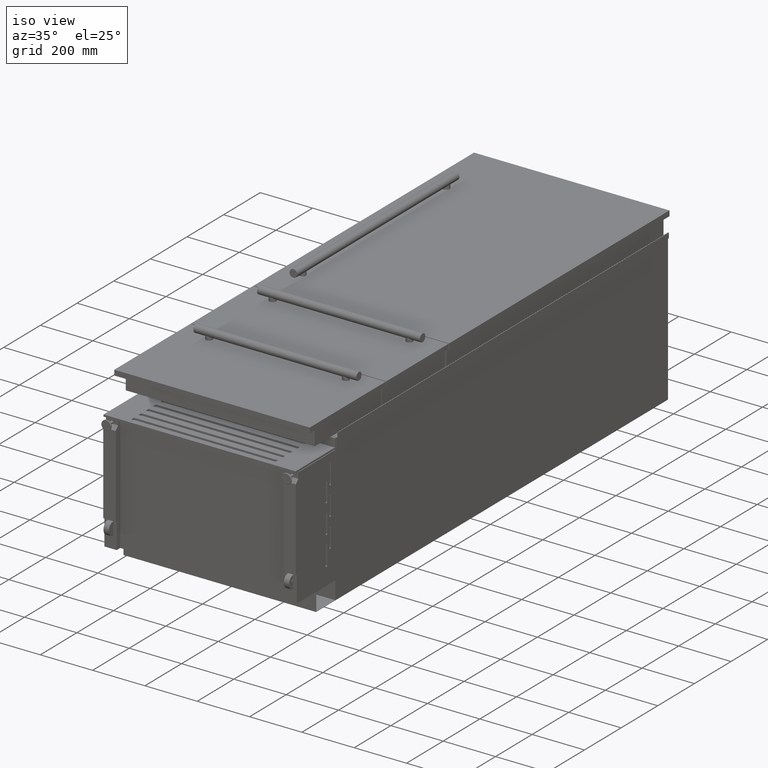
[diagram: clean part render]
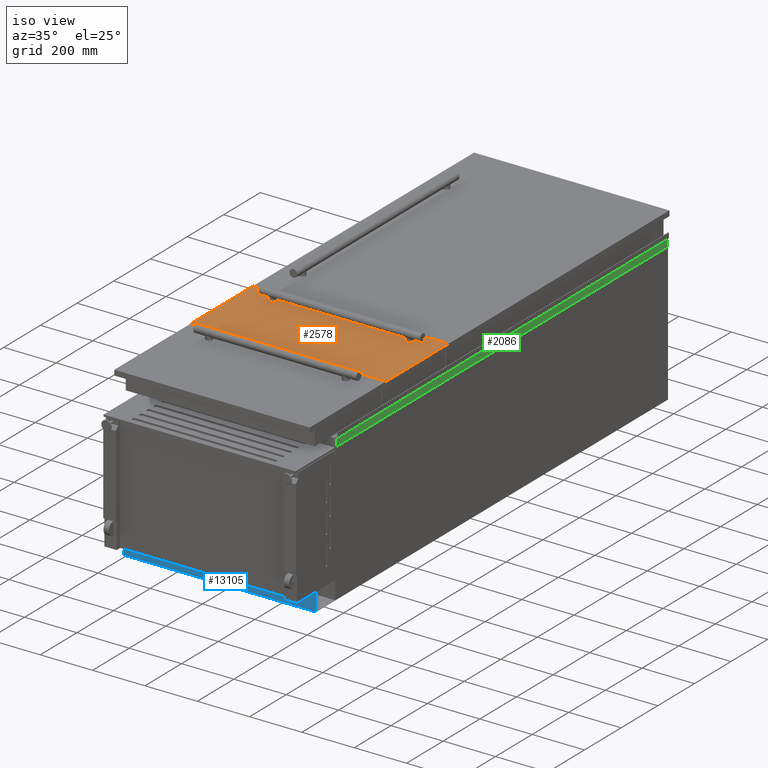
[diagram: same view with three faces highlighted in distinct colors, each labeled with its STEP entity id]
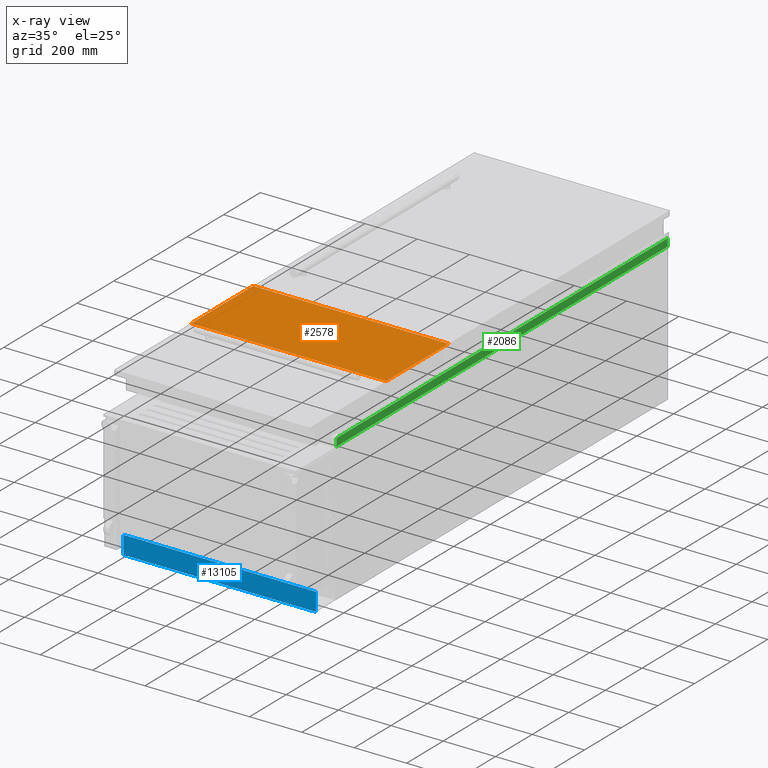
[diagram: x-ray of the same camera — body ghosted, the three highlighted faces saturated]
A machine part, iso view with three faces highlighted in distinct colors.
The next image is the same camera in x-ray (body ghosted, the three faces saturated) — at least one of them is partly hidden behind the body in this view.
Their STEP definitions:

[orange] entity #2578 — the highlighted planar face has unit normal (0, 0, -1).
#56 = DIRECTION ( 'NONE',  ( 0.0000000000000000000, 0.0000000000000000000, -1.000000000000000000 ) ) ;
#154 = ORIENTED_EDGE ( 'NONE', *, *, #8653, .T. ) ;
#173 = EDGE_CURVE ( 'NONE', #1429, #10213, #13714, .T. ) ;
#688 = VERTEX_POINT ( 'NONE', #13944 ) ;
#698 = LINE ( 'NONE', #997, #9811 ) ;
#807 = FACE_OUTER_BOUND ( 'NONE', #13815, .T. ) ;
#997 = CARTESIAN_POINT ( 'NONE',  ( -373.5000000000000600, -530.1499999999995200, 375.0000000000000600 ) ) ;
#1429 = VERTEX_POINT ( 'NONE', #7833 ) ;
#2578 = ADVANCED_FACE ( 'NONE', ( #807 ), #13205, .F. ) ;
#3335 = CARTESIAN_POINT ( 'NONE',  ( -373.5000000000001100, -190.1499999999994900, 375.0000000000000600 ) ) ;
#3473 = DIRECTION ( 'NONE',  ( -1.000000000000000000, 0.0000000000000000000, -0.0000000000000000000 ) ) ;
#4621 = ORIENTED_EDGE ( 'NONE', *, *, #173, .T. ) ;
#5684 = DIRECTION ( 'NONE',  ( -1.000000000000000000, -0.0000000000000000000, -0.0000000000000000000 ) ) ;
#5839 = VECTOR ( 'NONE', #6479, 1000.000000000000000 ) ;
#6479 = DIRECTION ( 'NONE',  ( 1.632680918566406300E-016, -1.000000000000000000, -0.0000000000000000000 ) ) ;
#7161 = CARTESIAN_POINT ( 'NONE',  ( -373.5000000000001100, -190.1499999999994900, 375.0000000000000600 ) ) ;
#7216 = CARTESIAN_POINT ( 'NONE',  ( 373.5000000000000000, -530.1499999999995200, 375.0000000000000600 ) ) ;
#7809 = VECTOR ( 'NONE', #5684, 1000.000000000000000 ) ;
#7833 = CARTESIAN_POINT ( 'NONE',  ( 373.5000000000000000, -530.1499999999995200, 375.0000000000000600 ) ) ;
#7880 = VECTOR ( 'NONE', #9433, 1000.000000000000000 ) ;
#8653 = EDGE_CURVE ( 'NONE', #12009, #688, #10518, .T. ) ;
#9045 = AXIS2_PLACEMENT_3D ( 'NONE', #9932, #56, #3473 ) ;
#9336 = EDGE_CURVE ( 'NONE', #688, #1429, #698, .T. ) ;
#9433 = DIRECTION ( 'NONE',  ( 1.632680918566406300E-016, 1.000000000000000000, 0.0000000000000000000 ) ) ;
#9600 = CARTESIAN_POINT ( 'NONE',  ( -373.5000000000000600, -530.1499999999995200, 375.0000000000000600 ) ) ;
#9811 = VECTOR ( 'NONE', #10917, 1000.000000000000000 ) ;
#9932 = CARTESIAN_POINT ( 'NONE',  ( 0.0000000000000000000, 0.0000000000000000000, 375.0000000000000600 ) ) ;
#10213 = VERTEX_POINT ( 'NONE', #10410 ) ;
#10410 = CARTESIAN_POINT ( 'NONE',  ( 373.5000000000000600, -190.1499999999994900, 375.0000000000000600 ) ) ;
#10518 = LINE ( 'NONE', #9600, #5839 ) ;
#10917 = DIRECTION ( 'NONE',  ( 1.000000000000000000, 0.0000000000000000000, 0.0000000000000000000 ) ) ;
#11139 = EDGE_CURVE ( 'NONE', #10213, #12009, #13485, .T. ) ;
#11435 = ORIENTED_EDGE ( 'NONE', *, *, #9336, .T. ) ;
#11884 = ORIENTED_EDGE ( 'NONE', *, *, #11139, .T. ) ;
#12009 = VERTEX_POINT ( 'NONE', #7161 ) ;
#13205 = PLANE ( 'NONE',  #9045 ) ;
#13485 = LINE ( 'NONE', #3335, #7809 ) ;
#13714 = LINE ( 'NONE', #7216, #7880 ) ;
#13815 = EDGE_LOOP ( 'NONE', ( #4621, #11884, #154, #11435 ) ) ;
#13944 = CARTESIAN_POINT ( 'NONE',  ( -373.5000000000000600, -530.1499999999995200, 375.0000000000000600 ) ) ;

[blue] entity #13105 — the highlighted planar face has unit normal (0, 1, 0).
#419 = DIRECTION ( 'NONE',  ( -0.0000000000000000000, -0.0000000000000000000, -1.000000000000000000 ) ) ;
#696 = CARTESIAN_POINT ( 'NONE',  ( 368.0000000000000000, -905.6000000000001400, -280.0000000000001100 ) ) ;
#726 = VERTEX_POINT ( 'NONE', #6329 ) ;
#2138 = ORIENTED_EDGE ( 'NONE', *, *, #11890, .F. ) ;
#2698 = CARTESIAN_POINT ( 'NONE',  ( 368.0000000000000000, -905.6000000000001400, -280.0000000000001100 ) ) ;
#3128 = DIRECTION ( 'NONE',  ( -0.0000000000000000000, -0.0000000000000000000, -1.000000000000000000 ) ) ;
#3644 = CARTESIAN_POINT ( 'NONE',  ( -368.0000000000000000, -905.6000000000001400, -280.0000000000001100 ) ) ;
#3654 = VERTEX_POINT ( 'NONE', #8105 ) ;
#3919 = VECTOR ( 'NONE', #13608, 1000.000000000000000 ) ;
#4030 = CARTESIAN_POINT ( 'NONE',  ( -368.0000000000000000, -905.6000000000001400, -280.0000000000001100 ) ) ;
#4073 = LINE ( 'NONE', #4030, #13395 ) ;
#4378 = VECTOR ( 'NONE', #11778, 1000.000000000000000 ) ;
#5448 = FACE_OUTER_BOUND ( 'NONE', #8468, .T. ) ;
#5705 = VERTEX_POINT ( 'NONE', #696 ) ;
#6329 = CARTESIAN_POINT ( 'NONE',  ( 368.0000000000000000, -905.6000000000001400, -210.3999999999998400 ) ) ;
#6376 = LINE ( 'NONE', #6981, #12576 ) ;
#6856 = PLANE ( 'NONE',  #9789 ) ;
#6981 = CARTESIAN_POINT ( 'NONE',  ( 368.0000000000000000, -905.6000000000001400, -280.0000000000001100 ) ) ;
#7340 = CARTESIAN_POINT ( 'NONE',  ( 368.0000000000000000, -905.6000000000001400, -210.3999999999998400 ) ) ;
#7522 = VERTEX_POINT ( 'NONE', #3644 ) ;
#7612 = ORIENTED_EDGE ( 'NONE', *, *, #7939, .F. ) ;
#7939 = EDGE_CURVE ( 'NONE', #726, #5705, #6376, .T. ) ;
#8105 = CARTESIAN_POINT ( 'NONE',  ( -368.0000000000000000, -905.6000000000001400, -210.3999999999998400 ) ) ;
#8331 = LINE ( 'NONE', #7340, #4378 ) ;
#8468 = EDGE_LOOP ( 'NONE', ( #11011, #10325, #2138, #7612 ) ) ;
#9789 = AXIS2_PLACEMENT_3D ( 'NONE', #10182, #10041, #13487 ) ;
#9803 = EDGE_CURVE ( 'NONE', #3654, #7522, #4073, .T. ) ;
#10041 = DIRECTION ( 'NONE',  ( 0.0000000000000000000, 1.000000000000000000, 0.0000000000000000000 ) ) ;
#10182 = CARTESIAN_POINT ( 'NONE',  ( 368.0000000000000000, -905.6000000000001400, -280.0000000000001100 ) ) ;
#10325 = ORIENTED_EDGE ( 'NONE', *, *, #9803, .T. ) ;
#11011 = ORIENTED_EDGE ( 'NONE', *, *, #13966, .T. ) ;
#11778 = DIRECTION ( 'NONE',  ( -1.000000000000000000, -0.0000000000000000000, -0.0000000000000000000 ) ) ;
#11890 = EDGE_CURVE ( 'NONE', #5705, #7522, #12378, .T. ) ;
#12378 = LINE ( 'NONE', #2698, #3919 ) ;
#12576 = VECTOR ( 'NONE', #419, 1000.000000000000000 ) ;
#13105 = ADVANCED_FACE ( 'NONE', ( #5448 ), #6856, .F. ) ;
#13395 = VECTOR ( 'NONE', #3128, 1000.000000000000000 ) ;
#13487 = DIRECTION ( 'NONE',  ( 0.0000000000000000000, -0.0000000000000000000, 1.000000000000000000 ) ) ;
#13608 = DIRECTION ( 'NONE',  ( -1.000000000000000000, -0.0000000000000000000, -0.0000000000000000000 ) ) ;
#13966 = EDGE_CURVE ( 'NONE', #726, #3654, #8331, .T. ) ;

[green] entity #2086 — the highlighted planar face has unit normal (-1, 0, 0).
#1050 = EDGE_CURVE ( 'NONE', #9129, #4107, #4669, .T. ) ;
#1090 = VECTOR ( 'NONE', #7188, 1000.000000000000000 ) ;
#1249 = CARTESIAN_POINT ( 'NONE',  ( 369.4999998500005100, 1065.901327281561400, 279.5000000500002700 ) ) ;
#1268 = EDGE_CURVE ( 'NONE', #9129, #12191, #5513, .T. ) ;
#1434 = DIRECTION ( 'NONE',  ( 0.0000000000000000000, 0.0000000000000000000, -1.000000000000000000 ) ) ;
#1439 = DIRECTION ( 'NONE',  ( -1.000000000000000000, 0.0000000000000000000, 0.0000000000000000000 ) ) ;
#2083 = EDGE_LOOP ( 'NONE', ( #12981, #10665, #11053, #8265 ) ) ;
#2086 = ADVANCED_FACE ( 'NONE', ( #10644 ), #13492, .F. ) ;
#2712 = CARTESIAN_POINT ( 'NONE',  ( 369.4999998500005100, 1065.901327281561400, 250.0000030000001900 ) ) ;
#3304 = CARTESIAN_POINT ( 'NONE',  ( 369.4999998500005100, 1065.901327281561400, 279.5000000500002700 ) ) ;
#3775 = CARTESIAN_POINT ( 'NONE',  ( 369.4999998500005100, -796.1499999999996400, 250.0000030000001900 ) ) ;
#3794 = EDGE_CURVE ( 'NONE', #12191, #9083, #4340, .T. ) ;
#4107 = VERTEX_POINT ( 'NONE', #7792 ) ;
#4323 = CARTESIAN_POINT ( 'NONE',  ( 369.4999998500005100, -796.1499999999997500, 279.5000000500002700 ) ) ;
#4340 = LINE ( 'NONE', #13719, #1090 ) ;
#4669 = LINE ( 'NONE', #5736, #13107 ) ;
#5007 = CARTESIAN_POINT ( 'NONE',  ( 369.4999998500005100, 1010.850000000000000, 279.5000000500002700 ) ) ;
#5513 = LINE ( 'NONE', #3304, #13916 ) ;
#5736 = CARTESIAN_POINT ( 'NONE',  ( 369.4999998500005100, 1010.850000000000000, 279.5000000500002700 ) ) ;
#6025 = DIRECTION ( 'NONE',  ( -0.0000000000000000000, -1.000000000000000000, -0.0000000000000000000 ) ) ;
#6158 = AXIS2_PLACEMENT_3D ( 'NONE', #1249, #1439, #9032 ) ;
#7014 = LINE ( 'NONE', #2712, #11507 ) ;
#7188 = DIRECTION ( 'NONE',  ( 0.0000000000000000000, 2.775557561562891400E-015, -1.000000000000000000 ) ) ;
#7792 = CARTESIAN_POINT ( 'NONE',  ( 369.4999998500005100, 1010.850000000000000, 250.0000030000001900 ) ) ;
#8265 = ORIENTED_EDGE ( 'NONE', *, *, #13256, .F. ) ;
#9032 = DIRECTION ( 'NONE',  ( 0.0000000000000000000, 0.0000000000000000000, 1.000000000000000000 ) ) ;
#9083 = VERTEX_POINT ( 'NONE', #3775 ) ;
#9129 = VERTEX_POINT ( 'NONE', #5007 ) ;
#10644 = FACE_OUTER_BOUND ( 'NONE', #2083, .T. ) ;
#10665 = ORIENTED_EDGE ( 'NONE', *, *, #1268, .T. ) ;
#10945 = DIRECTION ( 'NONE',  ( -0.0000000000000000000, -1.000000000000000000, -0.0000000000000000000 ) ) ;
#11053 = ORIENTED_EDGE ( 'NONE', *, *, #3794, .T. ) ;
#11507 = VECTOR ( 'NONE', #6025, 1000.000000000000000 ) ;
#12191 = VERTEX_POINT ( 'NONE', #4323 ) ;
#12981 = ORIENTED_EDGE ( 'NONE', *, *, #1050, .F. ) ;
#13107 = VECTOR ( 'NONE', #1434, 1000.000000000000000 ) ;
#13256 = EDGE_CURVE ( 'NONE', #4107, #9083, #7014, .T. ) ;
#13492 = PLANE ( 'NONE',  #6158 ) ;
#13719 = CARTESIAN_POINT ( 'NONE',  ( 369.4999998500005100, -796.1499999999997500, 279.5000000500004400 ) ) ;
#13916 = VECTOR ( 'NONE', #10945, 1000.000000000000000 ) ;